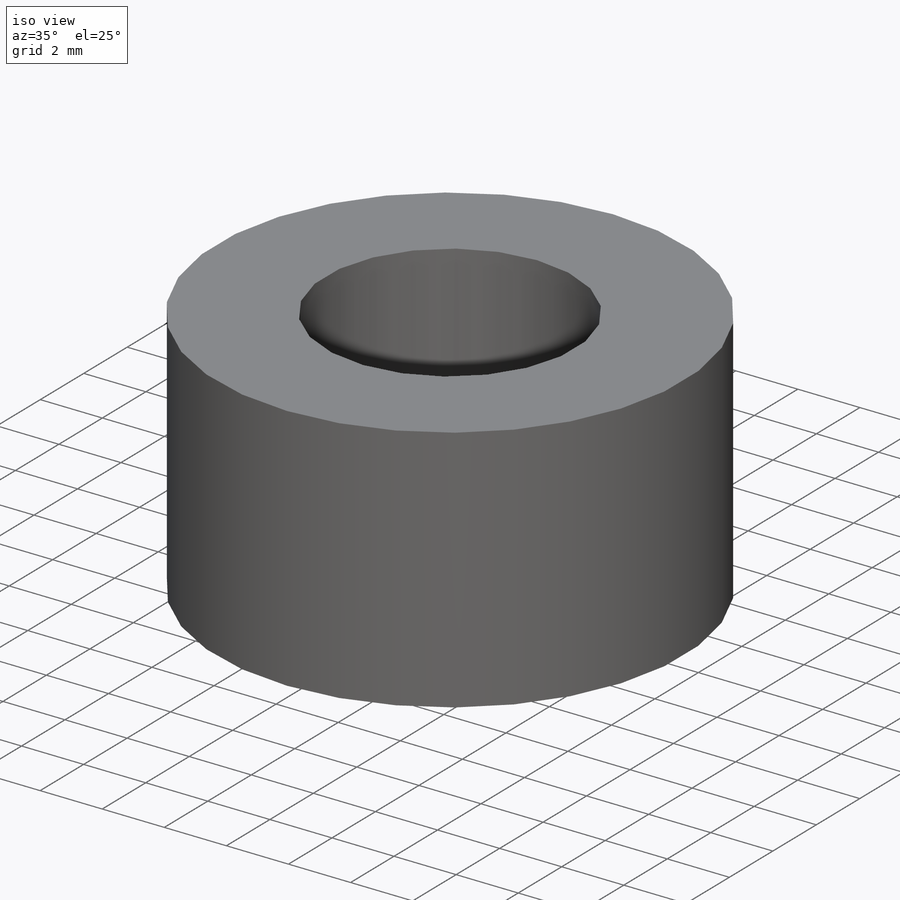
[diagram: iso view]
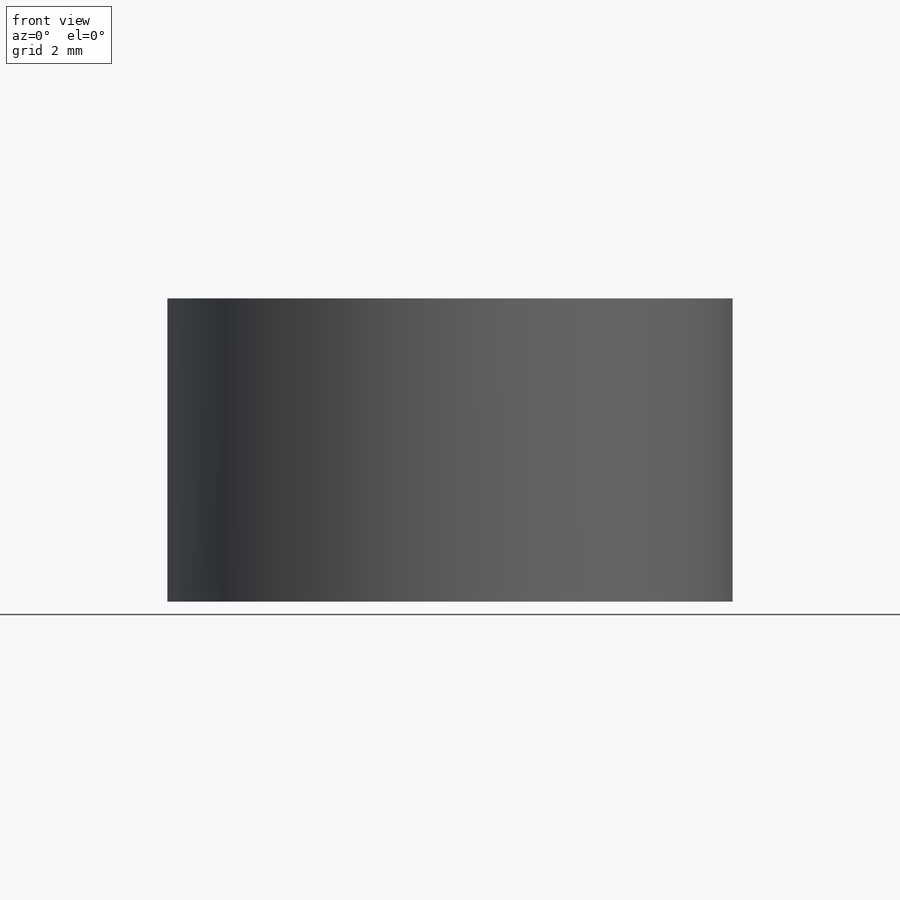
[diagram: front view]
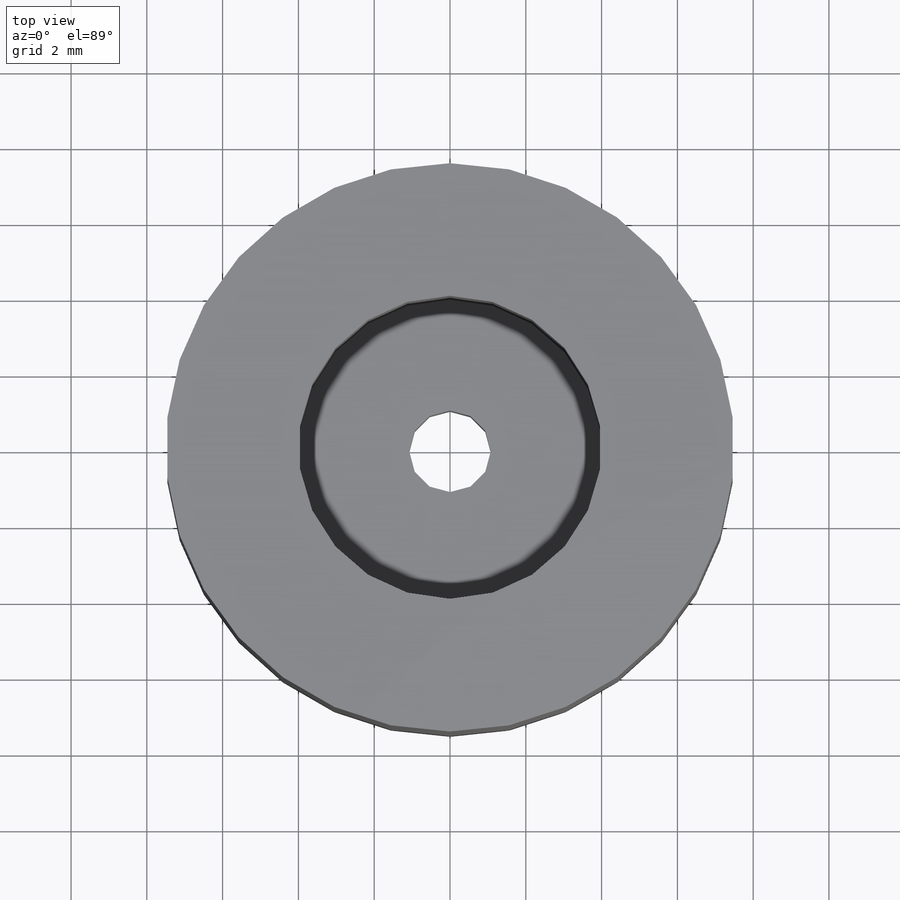
[diagram: top view]
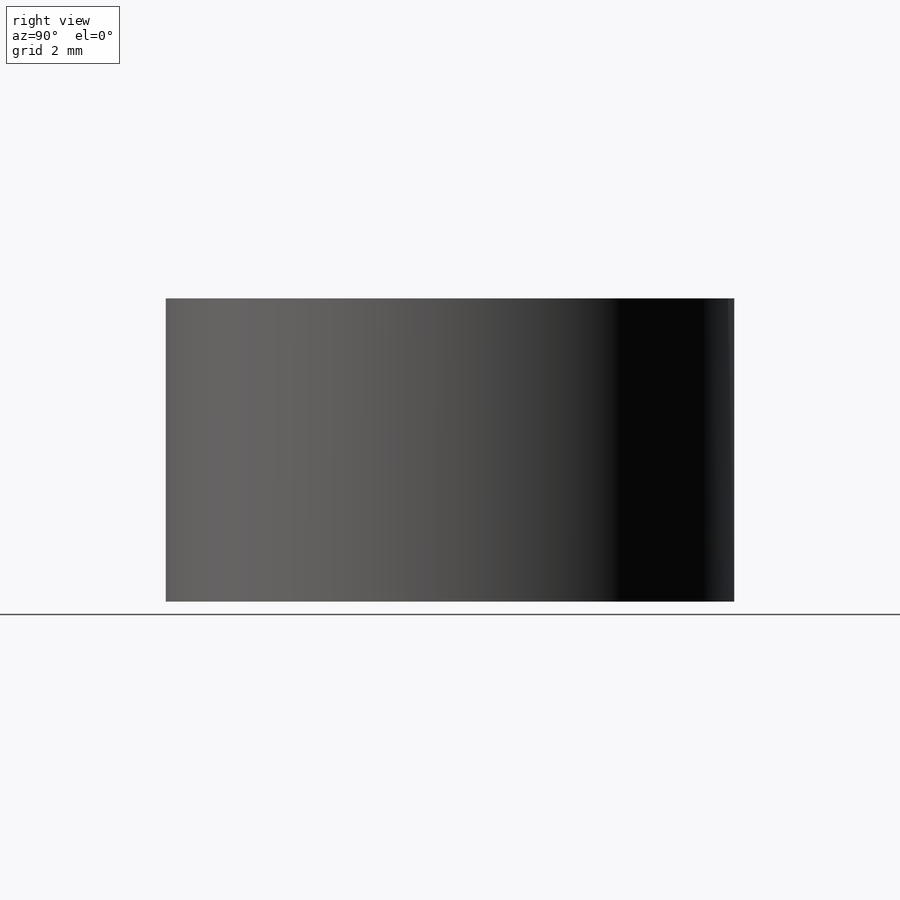
[diagram: right view]
SOLIDWORKS PART (.sldprt)
format: sldprt  version: not decoded by parser v0  size: 146,944 bytes
history: native  units: mm
features: sketch x3, cut_extrude x2, material x1, extrude x1 + 1 further entry (+13 scaffold rows collapsed)
feature tree (21):
  scaffold x13  (default folders/planes/origin — collapsed)
  material  "6061-T6 Al"
  "Origin"  ID=-1
  sketch  "Sketch1"  dims[D1=15.0mm]
  extrude  "Boss-Extrude1"  Depth=8mm
  sketch  "Sketch2"  dims[D1=8.0mm]
  cut_extrude  "Cut-Extrude1"  Depth=6mm
  sketch  "Sketch3"  dims[D1=2.15mm]
  cut_extrude  "Cut-Extrude2"  Depth=6mm
decode coverage: 6 of 6 modeling features carry decoded parameters; 1 rows unclassified (native names shown)
note: suppression state not decoded; provenance and decode notes live in map.json
